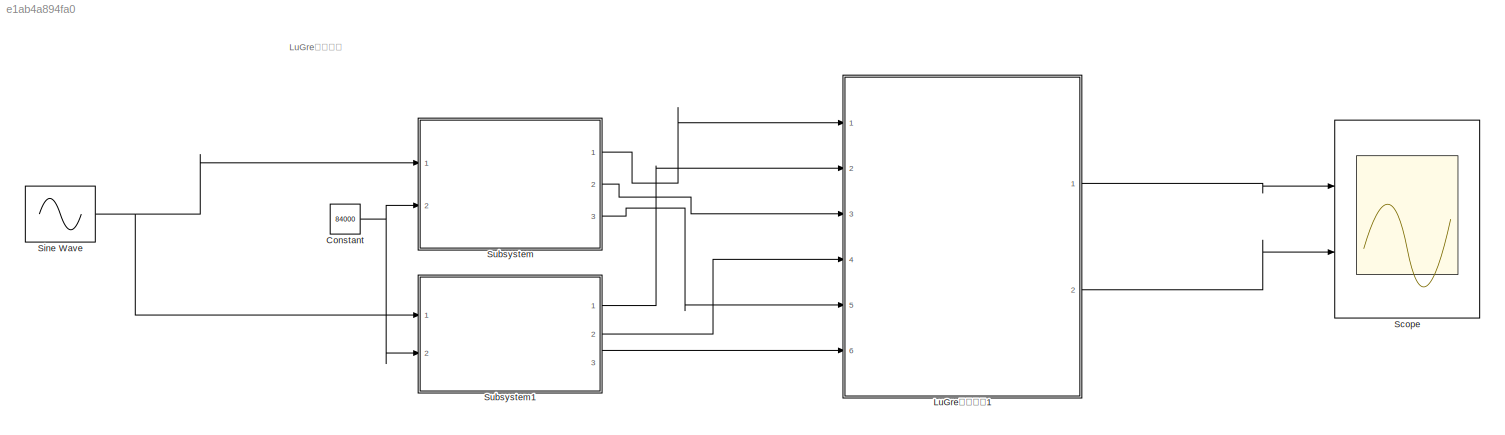
MODEL slx_e1ab4a894fa0
KIND model
CONFIG AbsTol = auto
CONFIG EnableMultiTasking = off
CONFIG FixedStep = auto
CONFIG MaxStep = auto
CONFIG MinStep = auto
CONFIG RelTol = 1e-3
CONFIG SampleTimeConstraint = Unconstrained
CONFIG Solver = ode45
CONFIG SolverName = ode45
CONFIG StartTime = 0.0
CONFIG StopTime = 10.0
BLOCK [Constant] Constant
  Value = 84000
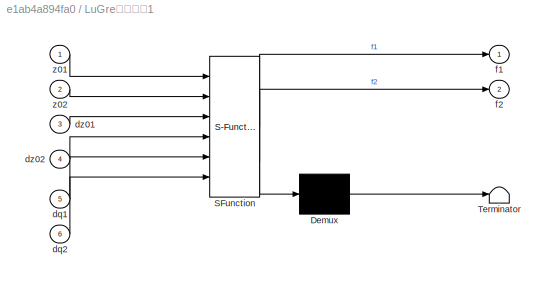
BLOCK [SubSystem] LuGre摩擦模型1
  ErrorFcn = Stateflow.Translate.translate
  PermitHierarchicalResolution = ExplicitOnly
  Ports = [6, 2]
  RequestExecContextInheritance = off
  SFBlockType = MATLAB Function
  TreatAsAtomicUnit = on
BLOCK [Demux] LuGre摩擦模型1/ Demux 
  Outputs = 1
  Ports = [1, 1]
BLOCK [S-Function] LuGre摩擦模型1/ SFunction 
  EnableBusSupport = on
  FunctionName = sf_sfun
  PortCounts = [6 3]
  Ports = [6, 3]
  SFcnIsStateOwnerBlock = off
  SFunctionDeploymentMode = off
  Tag = Stateflow S-Function 7
BLOCK [Terminator] LuGre摩擦模型1/ Terminator 
BLOCK [Inport] LuGre摩擦模型1/dq1
  IconDisplay = Port number
  Port = 5
BLOCK [Inport] LuGre摩擦模型1/dq2
  IconDisplay = Port number
  Port = 6
BLOCK [Inport] LuGre摩擦模型1/dz01
  IconDisplay = Port number
  Port = 3
BLOCK [Inport] LuGre摩擦模型1/dz02
  IconDisplay = Port number
  Port = 4
BLOCK [Outport] LuGre摩擦模型1/f1
  IconDisplay = Port number
BLOCK [Outport] LuGre摩擦模型1/f2
  IconDisplay = Port number
  Port = 2
BLOCK [Inport] LuGre摩擦模型1/z01
  IconDisplay = Port number
BLOCK [Inport] LuGre摩擦模型1/z02
  IconDisplay = Port number
  Port = 2
BLOCK [Scope] Scope
  Floating = off
  NumInputPorts = 2
  Ports = [2]
  ScopeSpecificationString = Simulink.scopes.TimeScopeBlockCfg('CurrentConfiguration', extmgr.ConfigurationSet(extmgr.Configuration('Core','General UI',true,'FigureColor',[1 1 1]),extmgr.Configuration('Core','Source UI',true),extmgr.Configuration('Sources','WiredSimulink',true,'DataLoggingVariableName','ScopeData1'),extmgr.Configuration('Visuals','Time Domain',true,'SerializedDisplays',{struct('MinYLimReal','-38.88917','MaxYL...<+2244ch>
BLOCK [Sin] Sine Wave
  Ports = [0, 1]
  SampleTime = 0
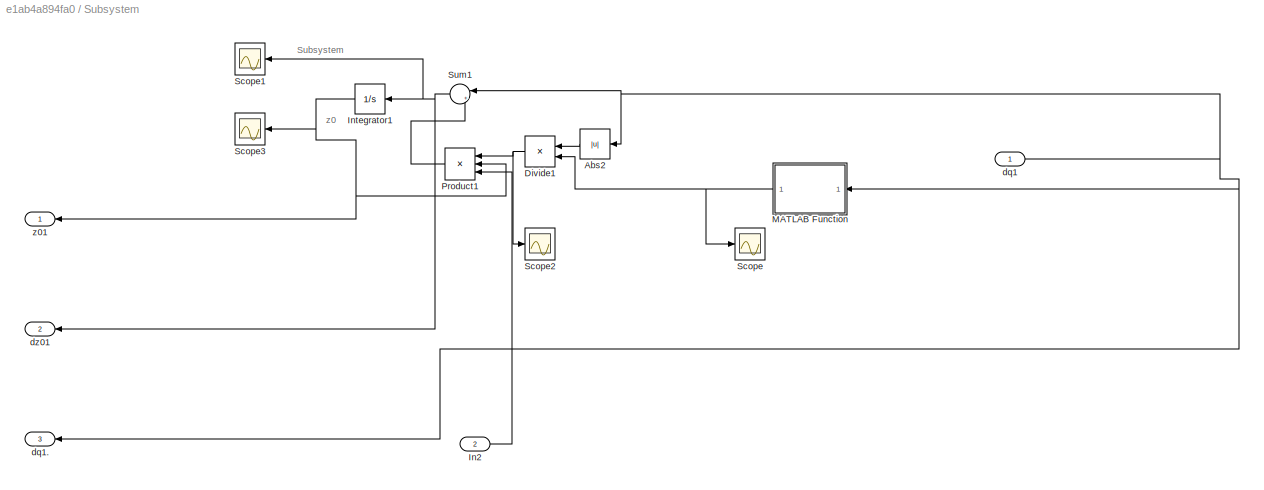
BLOCK [SubSystem] Subsystem
  Ports = [2, 3]
  RequestExecContextInheritance = off
BLOCK [Abs] Subsystem/Abs2
  SaturateOnIntegerOverflow = off
BLOCK [Product] Subsystem/Divide1
  InputSameDT = off
  Inputs = */
  OutDataTypeStr = Inherit: Inherit via internal rule
  Ports = [2, 1]
  RndMeth = Floor
  SaturateOnIntegerOverflow = off
BLOCK [Inport] Subsystem/In2
  IconDisplay = Port number
  Port = 2
BLOCK [Integrator] Subsystem/Integrator1
  Ports = [1, 1]
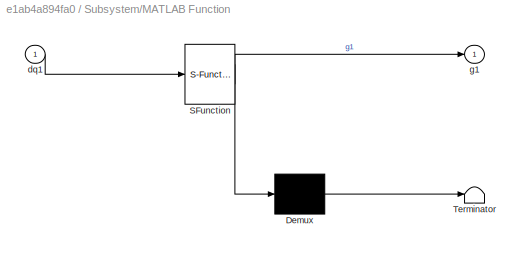
BLOCK [SubSystem] Subsystem/MATLAB Function
  ErrorFcn = Stateflow.Translate.translate
  PermitHierarchicalResolution = ExplicitOnly
  Ports = [1, 1]
  RequestExecContextInheritance = off
  SFBlockType = MATLAB Function
  TreatAsAtomicUnit = on
BLOCK [Demux] Subsystem/MATLAB Function/ Demux 
  Outputs = 1
  Ports = [1, 1]
BLOCK [S-Function] Subsystem/MATLAB Function/ SFunction 
  EnableBusSupport = on
  FunctionName = sf_sfun
  PortCounts = [1 2]
  Ports = [1, 2]
  SFcnIsStateOwnerBlock = off
  SFunctionDeploymentMode = off
  Tag = Stateflow S-Function 8
BLOCK [Terminator] Subsystem/MATLAB Function/ Terminator 
BLOCK [Inport] Subsystem/MATLAB Function/dq1
  IconDisplay = Port number
BLOCK [Outport] Subsystem/MATLAB Function/g1
  IconDisplay = Port number
BLOCK [Product] Subsystem/Product1
  InputSameDT = off
  Inputs = 3
  OutDataTypeStr = Inherit: Inherit via internal rule
  Ports = [3, 1]
  RndMeth = Floor
  SaturateOnIntegerOverflow = off
BLOCK [Scope] Subsystem/Scope
  Floating = off
  NumInputPorts = 1
  Ports = [1]
  ScopeSpecificationString = Simulink.scopes.TimeScopeBlockCfg('CurrentConfiguration', extmgr.ConfigurationSet(extmgr.Configuration('Core','General UI',true),extmgr.Configuration('Core','Source UI',true),extmgr.Configuration('Sources','WiredSimulink',true,'DataLoggingVariableName','ScopeData2'),extmgr.Configuration('Visuals','Time Domain',true,'SerializedDisplays',{struct('MinYLimReal','0.00281','MaxYLimReal','0.00469','YLabe...<+1426ch>
BLOCK [Scope] Subsystem/Scope1
  Floating = off
  NumInputPorts = 1
  Ports = [1]
  ScopeSpecificationString = Simulink.scopes.TimeScopeBlockCfg('CurrentConfiguration', extmgr.ConfigurationSet(extmgr.Configuration('Core','General UI',true),extmgr.Configuration('Core','Source UI',true),extmgr.Configuration('Sources','WiredSimulink',true,'DataLoggingVariableName','ScopeData3'),extmgr.Configuration('Visuals','Time Domain',true,'SerializedDisplays',{struct('MinYLimReal','-0.18084','MaxYLimReal','0.57565','YLab...<+1417ch>
BLOCK [Scope] Subsystem/Scope2
  Floating = off
  NumInputPorts = 1
  Ports = [1]
  ScopeSpecificationString = Simulink.scopes.TimeScopeBlockCfg('CurrentConfiguration', extmgr.ConfigurationSet(extmgr.Configuration('Core','General UI',true),extmgr.Configuration('Core','Source UI',true),extmgr.Configuration('Sources','WiredSimulink',true,'DataLoggingVariableName','ScopeData4'),extmgr.Configuration('Visuals','Time Domain',true,'SerializedDisplays',{struct('MinYLimReal','17884.97608','MaxYLimReal','20554.9873'...<+1465ch>
BLOCK [Scope] Subsystem/Scope3
  Floating = off
  NumInputPorts = 1
  Ports = [1]
  ScopeSpecificationString = Simulink.scopes.TimeScopeBlockCfg('CurrentConfiguration', extmgr.ConfigurationSet(extmgr.Configuration('Core','General UI',true),extmgr.Configuration('Core','Source UI',true),extmgr.Configuration('Sources','WiredSimulink',true,'DataLoggingVariableName','ScopeData5'),extmgr.Configuration('Visuals','Time Domain',true,'SerializedDisplays',{struct('MinYLimReal','-0.00005','MaxYLimReal','0.00043','YLab...<+1459ch>
BLOCK [Sum] Subsystem/Sum1
  IconShape = round
  InputSameDT = off
  Inputs = |+-
  OutDataTypeStr = Inherit: Inherit via internal rule
  Ports = [2, 1]
  SaturateOnIntegerOverflow = off
BLOCK [Inport] Subsystem/dq1
  IconDisplay = Port number
BLOCK [Outport] Subsystem/dq1.
  IconDisplay = Port number
  Port = 3
BLOCK [Outport] Subsystem/dz01
  IconDisplay = Port number
  Port = 2
BLOCK [Outport] Subsystem/z01
  IconDisplay = Port number
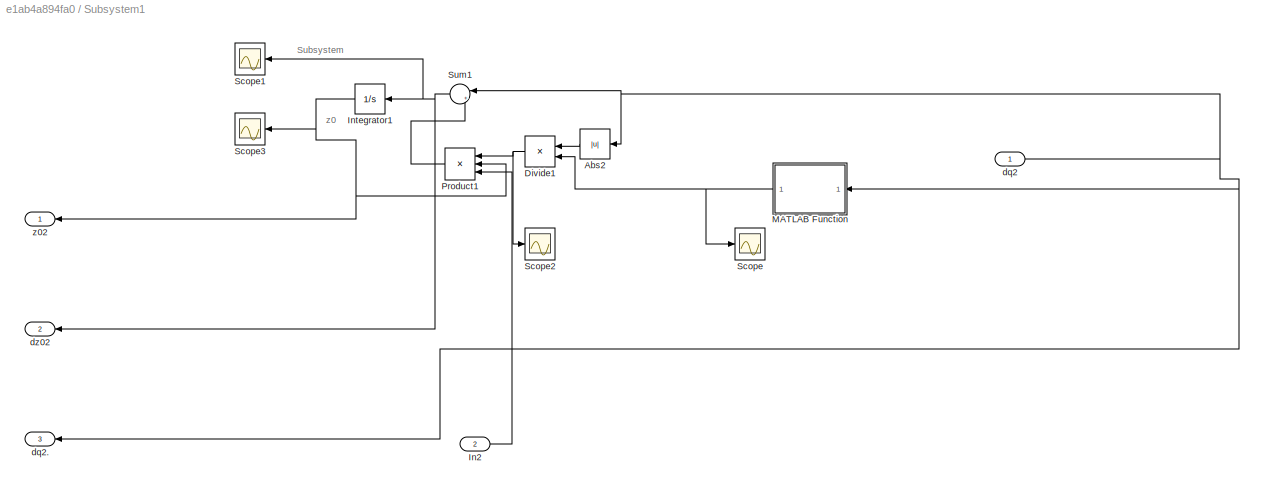
BLOCK [SubSystem] Subsystem1
  Ports = [2, 3]
  RequestExecContextInheritance = off
BLOCK [Abs] Subsystem1/Abs2
  SaturateOnIntegerOverflow = off
BLOCK [Product] Subsystem1/Divide1
  InputSameDT = off
  Inputs = */
  OutDataTypeStr = Inherit: Inherit via internal rule
  Ports = [2, 1]
  RndMeth = Floor
  SaturateOnIntegerOverflow = off
BLOCK [Inport] Subsystem1/In2
  IconDisplay = Port number
  Port = 2
BLOCK [Integrator] Subsystem1/Integrator1
  Ports = [1, 1]
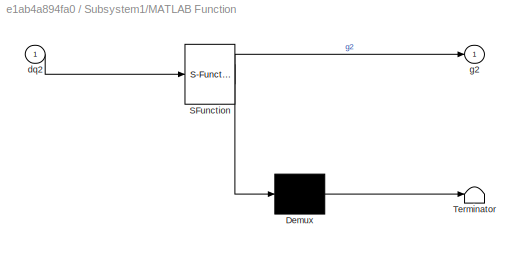
BLOCK [SubSystem] Subsystem1/MATLAB Function
  ErrorFcn = Stateflow.Translate.translate
  PermitHierarchicalResolution = ExplicitOnly
  Ports = [1, 1]
  RequestExecContextInheritance = off
  SFBlockType = MATLAB Function
  TreatAsAtomicUnit = on
BLOCK [Demux] Subsystem1/MATLAB Function/ Demux 
  Outputs = 1
  Ports = [1, 1]
BLOCK [S-Function] Subsystem1/MATLAB Function/ SFunction 
  EnableBusSupport = on
  FunctionName = sf_sfun
  PortCounts = [1 2]
  Ports = [1, 2]
  SFcnIsStateOwnerBlock = off
  SFunctionDeploymentMode = off
  Tag = Stateflow S-Function 1
BLOCK [Terminator] Subsystem1/MATLAB Function/ Terminator 
BLOCK [Inport] Subsystem1/MATLAB Function/dq2
  IconDisplay = Port number
BLOCK [Outport] Subsystem1/MATLAB Function/g2
  IconDisplay = Port number
BLOCK [Product] Subsystem1/Product1
  InputSameDT = off
  Inputs = 3
  OutDataTypeStr = Inherit: Inherit via internal rule
  Ports = [3, 1]
  RndMeth = Floor
  SaturateOnIntegerOverflow = off
BLOCK [Scope] Subsystem1/Scope
  Floating = off
  NumInputPorts = 1
  Ports = [1]
  ScopeSpecificationString = Simulink.scopes.TimeScopeBlockCfg('CurrentConfiguration', extmgr.ConfigurationSet(extmgr.Configuration('Core','General UI',true),extmgr.Configuration('Core','Source UI',true),extmgr.Configuration('Sources','WiredSimulink',true,'DataLoggingVariableName','ScopeData2'),extmgr.Configuration('Visuals','Time Domain',true,'SerializedDisplays',{struct('MinYLimReal','0.00281','MaxYLimReal','0.00469','YLabe...<+1426ch>
BLOCK [Scope] Subsystem1/Scope1
  Floating = off
  NumInputPorts = 1
  Ports = [1]
  ScopeSpecificationString = Simulink.scopes.TimeScopeBlockCfg('CurrentConfiguration', extmgr.ConfigurationSet(extmgr.Configuration('Core','General UI',true),extmgr.Configuration('Core','Source UI',true),extmgr.Configuration('Sources','WiredSimulink',true,'DataLoggingVariableName','ScopeData3'),extmgr.Configuration('Visuals','Time Domain',true,'SerializedDisplays',{struct('MinYLimReal','-0.18084','MaxYLimReal','0.57565','YLab...<+1417ch>
BLOCK [Scope] Subsystem1/Scope2
  Floating = off
  NumInputPorts = 1
  Ports = [1]
  ScopeSpecificationString = Simulink.scopes.TimeScopeBlockCfg('CurrentConfiguration', extmgr.ConfigurationSet(extmgr.Configuration('Core','General UI',true),extmgr.Configuration('Core','Source UI',true),extmgr.Configuration('Sources','WiredSimulink',true,'DataLoggingVariableName','ScopeData4'),extmgr.Configuration('Visuals','Time Domain',true,'SerializedDisplays',{struct('MinYLimReal','17884.97608','MaxYLimReal','20554.9873'...<+1465ch>
BLOCK [Scope] Subsystem1/Scope3
  Floating = off
  NumInputPorts = 1
  Ports = [1]
  ScopeSpecificationString = Simulink.scopes.TimeScopeBlockCfg('CurrentConfiguration', extmgr.ConfigurationSet(extmgr.Configuration('Core','General UI',true),extmgr.Configuration('Core','Source UI',true),extmgr.Configuration('Sources','WiredSimulink',true,'DataLoggingVariableName','ScopeData5'),extmgr.Configuration('Visuals','Time Domain',true,'SerializedDisplays',{struct('MinYLimReal','-0.00005','MaxYLimReal','0.00043','YLab...<+1459ch>
BLOCK [Sum] Subsystem1/Sum1
  IconShape = round
  InputSameDT = off
  Inputs = |+-
  OutDataTypeStr = Inherit: Inherit via internal rule
  Ports = [2, 1]
  SaturateOnIntegerOverflow = off
BLOCK [Inport] Subsystem1/dq2
  IconDisplay = Port number
BLOCK [Outport] Subsystem1/dq2.
  IconDisplay = Port number
  Port = 3
BLOCK [Outport] Subsystem1/dz02
  IconDisplay = Port number
  Port = 2
BLOCK [Outport] Subsystem1/z02
  IconDisplay = Port number
ANNOTATION (root): LuGre摩擦模型
ANNOTATION Subsystem: Subsystem
ANNOTATION Subsystem: z0
ANNOTATION Subsystem1: Subsystem
ANNOTATION Subsystem1: z0
NET Constant:1 -> Subsystem1:2, Subsystem:2
LINE LuGre摩擦模型1:1 -> Scope:1
LINE LuGre摩擦模型1:2 -> Scope:2
NET Sine Wave:1 -> Subsystem1:1, Subsystem:1
LINE Subsystem/Abs2:1 -> Subsystem/Divide1:1
NET Subsystem/Divide1:1 -> Subsystem/Product1:1, Subsystem/Scope2:1
LINE Subsystem/In2:1 -> Subsystem/Product1:3
NET Subsystem/Integrator1:1 -> Subsystem/Product1:2, Subsystem/Scope3:1, Subsystem/z01:1
NET Subsystem/MATLAB Function:1 -> Subsystem/Divide1:2, Subsystem/Scope:1
LINE Subsystem/Product1:1 -> Subsystem/Sum1:2
NET Subsystem/Sum1:1 -> Subsystem/Integrator1:1, Subsystem/Scope1:1, Subsystem/dz01:1
NET Subsystem/dq1:1 -> Subsystem/Abs2:1, Subsystem/MATLAB Function:1, Subsystem/Sum1:1, Subsystem/dq1.:1
LINE Subsystem1/Abs2:1 -> Subsystem1/Divide1:1
NET Subsystem1/Divide1:1 -> Subsystem1/Product1:1, Subsystem1/Scope2:1
LINE Subsystem1/In2:1 -> Subsystem1/Product1:3
NET Subsystem1/Integrator1:1 -> Subsystem1/Product1:2, Subsystem1/Scope3:1, Subsystem1/z02:1
NET Subsystem1/MATLAB Function:1 -> Subsystem1/Divide1:2, Subsystem1/Scope:1
LINE Subsystem1/Product1:1 -> Subsystem1/Sum1:2
NET Subsystem1/Sum1:1 -> Subsystem1/Integrator1:1, Subsystem1/Scope1:1, Subsystem1/dz02:1
NET Subsystem1/dq2:1 -> Subsystem1/Abs2:1, Subsystem1/MATLAB Function:1, Subsystem1/Sum1:1, Subsystem1/dq2.:1
LINE Subsystem1:1 -> LuGre摩擦模型1:2
LINE Subsystem1:2 -> LuGre摩擦模型1:4
LINE Subsystem1:3 -> LuGre摩擦模型1:6
LINE Subsystem:1 -> LuGre摩擦模型1:1
LINE Subsystem:2 -> LuGre摩擦模型1:3
LINE Subsystem:3 -> LuGre摩擦模型1:5
note: NET lines group one-source signal fan-out (src -> all destinations, sorted); 1:1 wires keep LINE
CHART Subsystem1/MATLAB Function states=1 transitions=1
  STATE_LABEL 'eML_blk_kernel()'
  STATE_LABEL 'SCRIPT:\nfunction g2 = fcn(dq2)\nxite1 = 260;\nxite2 = 28;\nFc = 3.82;\nFs = 8.16;\ndqs = 0.0125;\n\ng2 = Fc + (Fs-Fc)*exp(-(dq2/dqs)^2);\n\n'
CHART LuGre摩擦模型1 states=1 transitions=1
  STATE_LABEL 'eML_blk_kernel()'
  STATE_LABEL 'SCRIPT:\nfunction [f1,f2] = fcn(z01,z02,dz01,dz02,dq1,dq2)\nxite0 = 84000;\nxite1 = 260;\nxite2 = 28;\nFc = 3.82;\nFs = 8.16;\ndqs = 0.0125;\nlamda = 1;\n\nf1 = lamda * (xite0 * z01 + xite1 * dz01 + xite2 * dq1);\nf2 = lamda * (xite0 * z02 + xite1 * dz02 + xite2 * dq2);\n'
CHART Subsystem/MATLAB Function states=1 transitions=1
  STATE_LABEL 'eML_blk_kernel()'
  STATE_LABEL 'SCRIPT:\nfunction g1 = fcn(dq1)\nxite1 = 260;\nxite2 = 28;\nFc = 3.82;\nFs = 8.16;\ndqs = 0.0125;\n\ng1 = Fc + (Fs-Fc)*exp(-(dq1/dqs)^2);\n\n'
